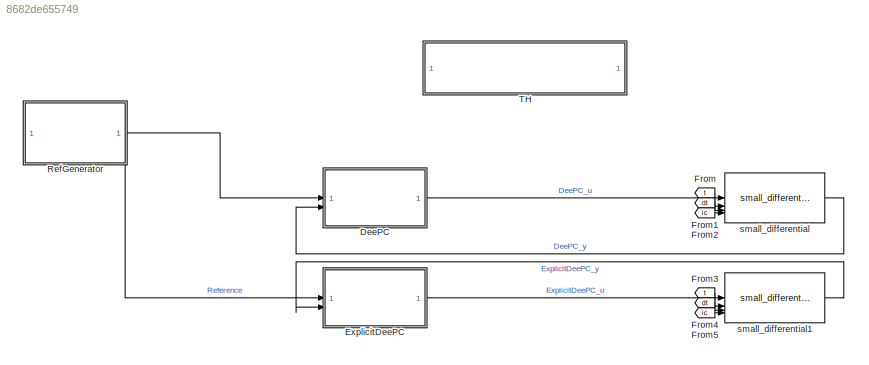
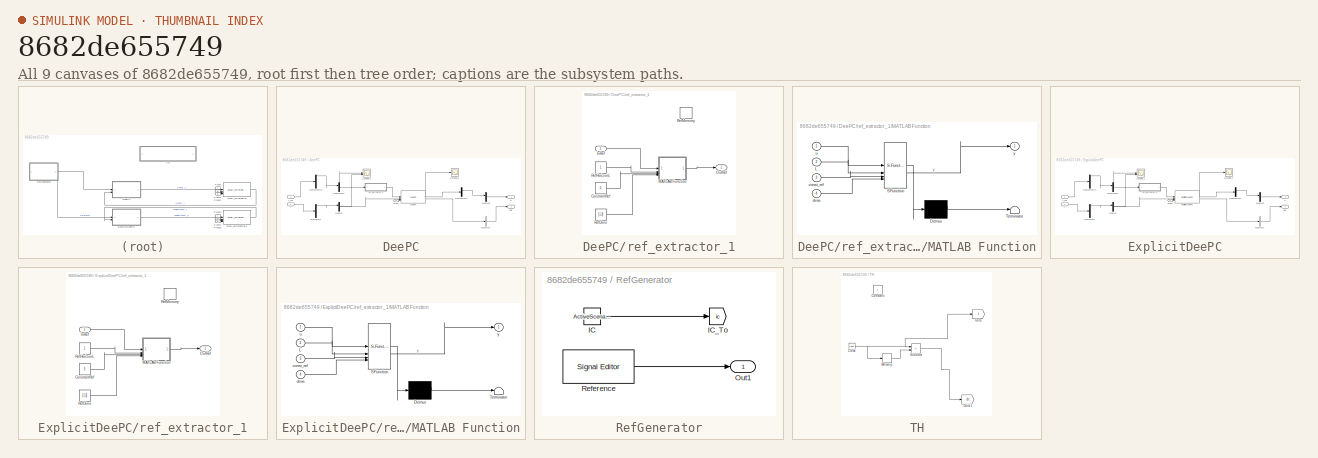
[diagram: thumbnail index - all 9 canvases of the model, root first then tree order]
MODEL slx_8682de655749
KIND model
CONFIG AbsTol = auto
CONFIG EnableMultiTasking = off
CONFIG FixedStep = 0.05
CONFIG MaxStep = auto
CONFIG MinStep = auto
CONFIG PostLoadFcn = on_model_load
CONFIG RelTol = 1e-3
CONFIG SampleTimeConstraint = Unconstrained
CONFIG SolverName = FixedStepAuto
CONFIG StartFcn = on_model_start
CONFIG StartTime = 0.0
CONFIG StopFcn = on_simulation_done
CONFIG StopTime = 10.0
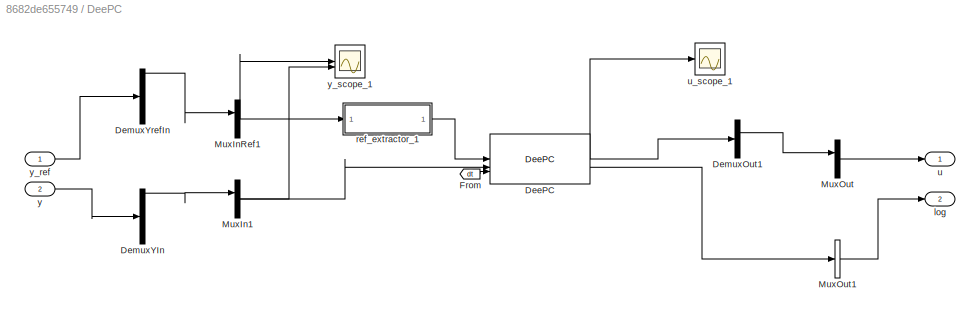
BLOCK [SubSystem] DeePC
BLOCK [Reference] DeePC/DeePC  REF=data_driven_lib_ctl/DeePC
  SourceBlock = data_driven_lib_ctl/DeePC
  Tag = __cs_m_ctl;
BLOCK [Demux] DeePC/DemuxOut1
  Outputs = 1
BLOCK [Demux] DeePC/DemuxYIn
  Outputs = 12
BLOCK [Demux] DeePC/DemuxYrefIn
  Outputs = 12
BLOCK [From] DeePC/From
  GotoTag = dt
  TagVisibility = global
BLOCK [Mux] DeePC/MuxIn1
  DisplayOption = bar
  Inputs = 1
BLOCK [Mux] DeePC/MuxInRef1
  DisplayOption = bar
  Inputs = 1
BLOCK [Mux] DeePC/MuxOut
  DisplayOption = bar
  Inputs = 2
BLOCK [BusCreator] DeePC/MuxOut1
  DisplayOption = bar
  InheritFromInputs = on
  Inputs = 1
BLOCK [Outport] DeePC/log
  Port = 2
BLOCK [SubSystem] DeePC/ref_extractor_1
BLOCK [Constant] DeePC/ref_extractor_1/ConstantRef
  Value = 0
BLOCK [Inport] DeePC/ref_extractor_1/InRef
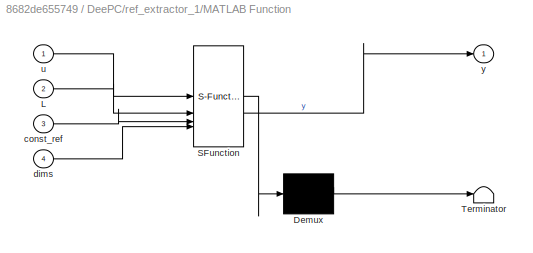
BLOCK [SubSystem] DeePC/ref_extractor_1/MATLAB Function
  ErrorFcn = Stateflow.Translate.translate
  PermitHierarchicalResolution = ExplicitOnly
  SFBlockType = MATLAB Function
  TreatAsAtomicUnit = on
BLOCK [Demux] DeePC/ref_extractor_1/MATLAB Function/ Demux 
  Outputs = 1
BLOCK [S-Function] DeePC/ref_extractor_1/MATLAB Function/ SFunction 
  EnableBusSupport = off
  FunctionName = sf_sfun
  Parameters = GlobalReference
  PortCounts = [4 2]
  SFcnIsStateOwnerBlock = off
  SFunctionDeploymentMode = off
  Tag = Stateflow S-Function 7
BLOCK [Terminator] DeePC/ref_extractor_1/MATLAB Function/ Terminator 
BLOCK [Inport] DeePC/ref_extractor_1/MATLAB Function/L
  Port = 2
BLOCK [Inport] DeePC/ref_extractor_1/MATLAB Function/const_ref
  Port = 3
BLOCK [Inport] DeePC/ref_extractor_1/MATLAB Function/dims
  Port = 4
BLOCK [Inport] DeePC/ref_extractor_1/MATLAB Function/u
BLOCK [Outport] DeePC/ref_extractor_1/MATLAB Function/y
BLOCK [Outport] DeePC/ref_extractor_1/OutRef
BLOCK [Constant] DeePC/ref_extractor_1/RefDims
  Value = [1 2]
BLOCK [Constant] DeePC/ref_extractor_1/RefHorizonL
BLOCK [DataStoreMemory] DeePC/ref_extractor_1/RefMemory
  DataStoreName = ref
  OutDataTypeStr = double
  ShowAdditionalParam = off
  SignalType = real
  WriteAfterWriteMsg = warning
BLOCK [Outport] DeePC/u
  PortDimensions = 2
BLOCK [Scope] DeePC/u_scope_1
  Floating = off
  NumInputPorts = 1
BLOCK [Inport] DeePC/y
  Port = 2
  PortDimensions = 12
BLOCK [Inport] DeePC/y_ref
  PortDimensions = 12
BLOCK [Scope] DeePC/y_scope_1
  Floating = off
  NumInputPorts = 2
BLOCK [SubSystem] ExplicitDeePC
BLOCK [Demux] ExplicitDeePC/DemuxOut1
  Outputs = 1
BLOCK [Demux] ExplicitDeePC/DemuxYIn
  Outputs = 12
BLOCK [Demux] ExplicitDeePC/DemuxYrefIn
  Outputs = 12
BLOCK [Reference] ExplicitDeePC/ExplicitDeePC  REF=data_driven_lib_ctl/ExplicitDeePC
  SourceBlock = data_driven_lib_ctl/ExplicitDeePC
  Tag = __cs_m_ctl;
BLOCK [From] ExplicitDeePC/From
  GotoTag = dt
  TagVisibility = global
BLOCK [Mux] ExplicitDeePC/MuxIn1
  DisplayOption = bar
  Inputs = 1
BLOCK [Mux] ExplicitDeePC/MuxInRef1
  DisplayOption = bar
  Inputs = 1
BLOCK [Mux] ExplicitDeePC/MuxOut
  DisplayOption = bar
  Inputs = 2
BLOCK [BusCreator] ExplicitDeePC/MuxOut1
  DisplayOption = bar
  InheritFromInputs = on
  Inputs = 1
BLOCK [Outport] ExplicitDeePC/log
  Port = 2
BLOCK [SubSystem] ExplicitDeePC/ref_extractor_1
BLOCK [Constant] ExplicitDeePC/ref_extractor_1/ConstantRef
  Value = 0
BLOCK [Inport] ExplicitDeePC/ref_extractor_1/InRef
BLOCK [SubSystem] ExplicitDeePC/ref_extractor_1/MATLAB Function
  ErrorFcn = Stateflow.Translate.translate
  PermitHierarchicalResolution = ExplicitOnly
  SFBlockType = MATLAB Function
  TreatAsAtomicUnit = on
BLOCK [Demux] ExplicitDeePC/ref_extractor_1/MATLAB Function/ Demux 
  Outputs = 1
BLOCK [S-Function] ExplicitDeePC/ref_extractor_1/MATLAB Function/ SFunction 
  EnableBusSupport = off
  FunctionName = sf_sfun
  Parameters = GlobalReference
  PortCounts = [4 2]
  SFcnIsStateOwnerBlock = off
  SFunctionDeploymentMode = off
  Tag = Stateflow S-Function 1
BLOCK [Terminator] ExplicitDeePC/ref_extractor_1/MATLAB Function/ Terminator 
BLOCK [Inport] ExplicitDeePC/ref_extractor_1/MATLAB Function/L
  Port = 2
BLOCK [Inport] ExplicitDeePC/ref_extractor_1/MATLAB Function/const_ref
  Port = 3
BLOCK [Inport] ExplicitDeePC/ref_extractor_1/MATLAB Function/dims
  Port = 4
BLOCK [Inport] ExplicitDeePC/ref_extractor_1/MATLAB Function/u
BLOCK [Outport] ExplicitDeePC/ref_extractor_1/MATLAB Function/y
BLOCK [Outport] ExplicitDeePC/ref_extractor_1/OutRef
BLOCK [Constant] ExplicitDeePC/ref_extractor_1/RefDims
  Value = [1 2]
BLOCK [Constant] ExplicitDeePC/ref_extractor_1/RefHorizonL
BLOCK [DataStoreMemory] ExplicitDeePC/ref_extractor_1/RefMemory
  DataStoreName = ref
  OutDataTypeStr = double
  ShowAdditionalParam = off
  SignalType = real
  WriteAfterWriteMsg = warning
BLOCK [Outport] ExplicitDeePC/u
  PortDimensions = 2
BLOCK [Scope] ExplicitDeePC/u_scope_1
  Floating = off
  NumInputPorts = 1
BLOCK [Inport] ExplicitDeePC/y
  Port = 2
  PortDimensions = 12
BLOCK [Inport] ExplicitDeePC/y_ref
  PortDimensions = 12
BLOCK [Scope] ExplicitDeePC/y_scope_1
  Floating = off
  NumInputPorts = 2
BLOCK [From] From
  GotoTag = t
  TagVisibility = global
BLOCK [From] From1
  GotoTag = dt
  TagVisibility = global
BLOCK [From] From2
  GotoTag = ic
  TagVisibility = global
BLOCK [From] From3
  GotoTag = t
  TagVisibility = global
BLOCK [From] From4
  GotoTag = dt
  TagVisibility = global
BLOCK [From] From5
  GotoTag = ic
  TagVisibility = global
BLOCK [SubSystem] RefGenerator
  OpenFcn = on_reference_generator_open();
BLOCK [Constant] RefGenerator/IC
  Value = ActiveScenario.Ic
BLOCK [Goto] RefGenerator/IC_To
  GotoTag = ic
  TagVisibility = global
BLOCK [Outport] RefGenerator/Out1
BLOCK [Reference] RefGenerator/Reference  REF=SignalEditorBlockLib/Signal Editor
  LibrarySourceBlock = simulink/Sources/Signal Editor
  SourceBlock = SignalEditorBlockLib/Signal Editor
  SourceType = SignalEditor
  UserDataPersistent = on
BLOCK [SubSystem] TH
BLOCK [Clock] TH/Clock
BLOCK [Constant] TH/Constant
BLOCK [Goto] TH/Goto
  GotoTag = t
  TagVisibility = global
BLOCK [Goto] TH/Goto1
  GotoTag = dt
  TagVisibility = global
BLOCK [Memory] TH/Memory
BLOCK [Sum] TH/Subtract
  IconShape = rectangular
  Inputs = +-
BLOCK [Reference] small_differential  REF=baselines/small_differential
  SourceBlock = baselines/small_differential
  SourceType = SubSystem
  Tag = __cs_slx_sys;
BLOCK [Reference] small_differential1  REF=baselines/small_differential
  SourceBlock = baselines/small_differential
  SourceType = SubSystem
  Tag = __cs_slx_sys;
NET DeePC/DeePC:1 -> DeePC/DemuxOut1:1, DeePC/u_scope_1:1
LINE DeePC/DeePC:2 -> DeePC/MuxOut1:1
LINE DeePC/DemuxOut1:1 -> DeePC/MuxOut:1
LINE DeePC/DemuxYIn:1 -> DeePC/MuxIn1:1
LINE DeePC/DemuxYrefIn:1 -> DeePC/MuxInRef1:1
LINE DeePC/From:1 -> DeePC/DeePC:3
NET DeePC/MuxIn1:1 -> DeePC/DeePC:2, DeePC/y_scope_1:2
NET DeePC/MuxInRef1:1 -> DeePC/ref_extractor_1:1, DeePC/y_scope_1:1
LINE DeePC/MuxOut1:1 -> DeePC/log:1
LINE DeePC/MuxOut:1 -> DeePC/u:1
LINE DeePC/ref_extractor_1/ConstantRef:1 -> DeePC/ref_extractor_1/MATLAB Function:3
LINE DeePC/ref_extractor_1/InRef:1 -> DeePC/ref_extractor_1/MATLAB Function:1
LINE DeePC/ref_extractor_1/MATLAB Function:1 -> DeePC/ref_extractor_1/OutRef:1
LINE DeePC/ref_extractor_1/RefDims:1 -> DeePC/ref_extractor_1/MATLAB Function:4
LINE DeePC/ref_extractor_1/RefHorizonL:1 -> DeePC/ref_extractor_1/MATLAB Function:2
LINE DeePC/ref_extractor_1:1 -> DeePC/DeePC:1
LINE DeePC/y:1 -> DeePC/DemuxYIn:1
LINE DeePC/y_ref:1 -> DeePC/DemuxYrefIn:1
LINE DeePC:1 -> small_differential:1
LINE ExplicitDeePC/DemuxOut1:1 -> ExplicitDeePC/MuxOut:1
LINE ExplicitDeePC/DemuxYIn:1 -> ExplicitDeePC/MuxIn1:1
LINE ExplicitDeePC/DemuxYrefIn:1 -> ExplicitDeePC/MuxInRef1:1
NET ExplicitDeePC/ExplicitDeePC:1 -> ExplicitDeePC/DemuxOut1:1, ExplicitDeePC/u_scope_1:1
LINE ExplicitDeePC/ExplicitDeePC:2 -> ExplicitDeePC/MuxOut1:1
LINE ExplicitDeePC/From:1 -> ExplicitDeePC/ExplicitDeePC:3
NET ExplicitDeePC/MuxIn1:1 -> ExplicitDeePC/ExplicitDeePC:2, ExplicitDeePC/y_scope_1:2
NET ExplicitDeePC/MuxInRef1:1 -> ExplicitDeePC/ref_extractor_1:1, ExplicitDeePC/y_scope_1:1
LINE ExplicitDeePC/MuxOut1:1 -> ExplicitDeePC/log:1
LINE ExplicitDeePC/MuxOut:1 -> ExplicitDeePC/u:1
LINE ExplicitDeePC/ref_extractor_1/ConstantRef:1 -> ExplicitDeePC/ref_extractor_1/MATLAB Function:3
LINE ExplicitDeePC/ref_extractor_1/InRef:1 -> ExplicitDeePC/ref_extractor_1/MATLAB Function:1
LINE ExplicitDeePC/ref_extractor_1/MATLAB Function:1 -> ExplicitDeePC/ref_extractor_1/OutRef:1
LINE ExplicitDeePC/ref_extractor_1/RefDims:1 -> ExplicitDeePC/ref_extractor_1/MATLAB Function:4
LINE ExplicitDeePC/ref_extractor_1/RefHorizonL:1 -> ExplicitDeePC/ref_extractor_1/MATLAB Function:2
LINE ExplicitDeePC/ref_extractor_1:1 -> ExplicitDeePC/ExplicitDeePC:1
LINE ExplicitDeePC/y:1 -> ExplicitDeePC/DemuxYIn:1
LINE ExplicitDeePC/y_ref:1 -> ExplicitDeePC/DemuxYrefIn:1
LINE ExplicitDeePC:1 -> small_differential1:1
LINE From1:1 -> small_differential:3
LINE From2:1 -> small_differential:4
LINE From3:1 -> small_differential1:2
LINE From4:1 -> small_differential1:3
LINE From5:1 -> small_differential1:4
LINE From:1 -> small_differential:2
LINE RefGenerator/IC:1 -> RefGenerator/IC_To:1
LINE RefGenerator/Reference:1 -> RefGenerator/Out1:1
NET RefGenerator:1 -> DeePC:1, ExplicitDeePC:1
NET TH/Clock:1 -> TH/Goto:1, TH/Memory:1, TH/Subtract:1
LINE TH/Memory:1 -> TH/Subtract:2
LINE TH/Subtract:1 -> TH/Goto1:1
LINE small_differential1:1 -> ExplicitDeePC:2
LINE small_differential:1 -> DeePC:2
note: NET lines group one-source signal fan-out (src -> all destinations, sorted); 1:1 wires keep LINE
CHART ExplicitDeePC/ref_extractor_1/MATLAB Function states=1 transitions=1
  STATE_LABEL 'eML_blk_kernel()'
  STATE_LABEL 'SCRIPT:\nfunction y = fcn(u, L, const_ref, dims, GlobalReference)\n\npersistent cnt\nglobal ref\n\nif isempty(cnt)\n    cnt = 0;\nend\ncnt = cnt+1;\n\nhorizon_end = cnt+L-1;\nif L > 1 \n   if horizon_end > length(GlobalReference)\n        if size(ref, 1) == size(u, 1)\n            y = permute(ref, [2, 1]);\n        else\n            y = ref;\n        end       \n        return\n   end\n\n   if size(ref, 1) == size(u, 1...<+555ch>'
CHART DeePC/ref_extractor_1/MATLAB Function states=1 transitions=1
  STATE_LABEL 'eML_blk_kernel()'
  STATE_LABEL 'SCRIPT:\nfunction y = fcn(u, L, const_ref, dims, GlobalReference)\n\npersistent cnt\nglobal ref\n\nif isempty(cnt)\n    cnt = 0;\nend\ncnt = cnt+1;\n\nhorizon_end = cnt+L-1;\nif L > 1 \n   if horizon_end > length(GlobalReference)\n        if size(ref, 1) == size(u, 1)\n            y = permute(ref, [2, 1]);\n        else\n            y = ref;\n        end       \n        return\n   end\n\n   if size(ref, 1) == size(u, 1...<+555ch>'
CHART  states=0 transitions=0
CHART  states=0 transitions=0
